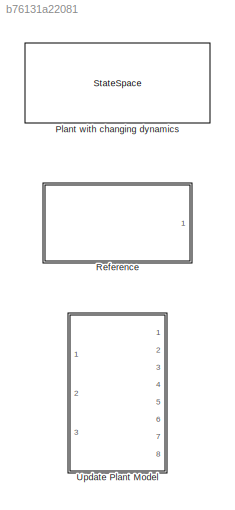
MODEL slx_b76131a22081
KIND library
CONFIG AbsTol = auto
CONFIG EnableMultiTasking = off
CONFIG FixedStep = auto
CONFIG MaxStep = auto
CONFIG MinStep = auto
CONFIG RelTol = 1e-3
CONFIG SampleTimeConstraint = Unconstrained
CONFIG Solver = VariableStepAuto
CONFIG SolverName = VariableStepAuto
CONFIG StartTime = 0.0
CONFIG StopTime = 10.0
BLOCK [StateSpace] Plant with changing dynamics
  A = [-(2*Cf+2*Cr)/m/Vx, 0, -Vx-(2*Cf*lf-2*Cr*lr)/m/Vx, 0;\n     0, 0, 1, 0;\n     -(2*Cf*lf-2*Cr*lr)/Iz/Vx, 0, -(2*Cf*lf^2+2*Cr*lr^2)/Iz/Vx, 0;\n     1, Vx, 0, 0];
  B = [2*Cf/m 0 2*Cf*lf/Iz 0]';
  C = [0 0 0 1; 0 1 0 0];
  D = [0;0]
  InitialCondition = 0
  Ports = [1, 1]
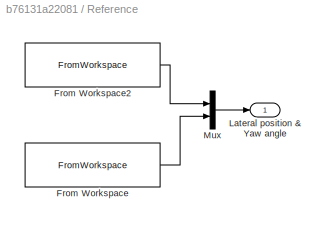
BLOCK [SubSystem] Reference
  Ports = [0, 1]
  RequestExecContextInheritance = off
BLOCK [FromWorkspace] Reference/From Workspace
  SampleTime = 0.1
  VariableName = [t', deg2rad(yawRef)']
  ZeroCross = on
BLOCK [FromWorkspace] Reference/From Workspace2
  SampleTime = 0.1
  VariableName = [t', posRef(:,2)]
  ZeroCross = on
BLOCK [Outport] Reference/Lateral position & Yaw angle
  IconDisplay = Port number
BLOCK [Mux] Reference/Mux
  DisplayOption = bar
  Inputs = 2
  Ports = [2, 1]
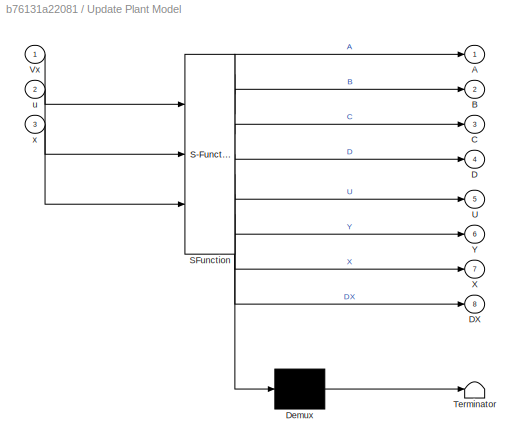
BLOCK [SubSystem] Update Plant Model
  ErrorFcn = Stateflow.Translate.translate
  PermitHierarchicalResolution = ExplicitOnly
  Ports = [3, 8]
  RequestExecContextInheritance = off
  SFBlockType = MATLAB Function
  TreatAsAtomicUnit = on
BLOCK [Demux] Update Plant Model/ Demux 
  Outputs = 1
  Ports = [1, 1]
BLOCK [S-Function] Update Plant Model/ SFunction 
  EnableBusSupport = on
  FunctionName = sf_sfun
  PortCounts = [3 9]
  Ports = [3, 9]
  SFcnIsStateOwnerBlock = off
  SFunctionDeploymentMode = off
  Tag = Stateflow S-Function Meldas_library 2
BLOCK [Terminator] Update Plant Model/ Terminator 
BLOCK [Outport] Update Plant Model/A
  IconDisplay = Port number
BLOCK [Outport] Update Plant Model/B
  IconDisplay = Port number
  Port = 2
BLOCK [Outport] Update Plant Model/C
  IconDisplay = Port number
  Port = 3
BLOCK [Outport] Update Plant Model/D
  IconDisplay = Port number
  Port = 4
BLOCK [Outport] Update Plant Model/DX
  IconDisplay = Port number
  Port = 8
BLOCK [Outport] Update Plant Model/U
  IconDisplay = Port number
  Port = 5
BLOCK [Inport] Update Plant Model/Vx
  IconDisplay = Port number
BLOCK [Outport] Update Plant Model/X
  IconDisplay = Port number
  Port = 7
BLOCK [Outport] Update Plant Model/Y
  IconDisplay = Port number
  Port = 6
BLOCK [Inport] Update Plant Model/u
  IconDisplay = Port number
  Port = 2
BLOCK [Inport] Update Plant Model/x
  IconDisplay = Port number
  Port = 3
LINE Reference/From Workspace2:1 -> Reference/Mux:1
LINE Reference/From Workspace:1 -> Reference/Mux:2
LINE Reference/Mux:1 -> Reference/Lateral position & Yaw angle:1
CHART Update Plant Model states=1 transitions=1
  STATE_LABEL 'eML_blk_kernel()'
  STATE_LABEL "SCRIPT:\nfunction [A,B,C,D,U,Y,X,DX] = fcn(Vx,u,x)\n% Sample time\nTs = 0.1;\n\n% Model parameters\nm = 1575;\nIz = 2875;\nlf = 1.2;\nlr = 1.6;\nCf = 19000;\nCr = 33000;\n\n% Continuous-time model\nAc = [-(2*Cf+2*Cr)/m/Vx, 0, -Vx-(2*Cf*lf-2*Cr*lr)/m/Vx, 0;\n     0, 0, 1, 0;\n     -(2*Cf*lf-2*Cr*lr)/Iz/Vx, 0, -(2*Cf*lf^2+2*Cr*lr^2)/Iz/Vx, 0;\n     1, Vx, 0, 0];\nBc = [2*Cf/m 0 2*Cf*lf/Iz 0]';   \nCc = [0 0 0 1; 0 1 0...<+357ch>"
